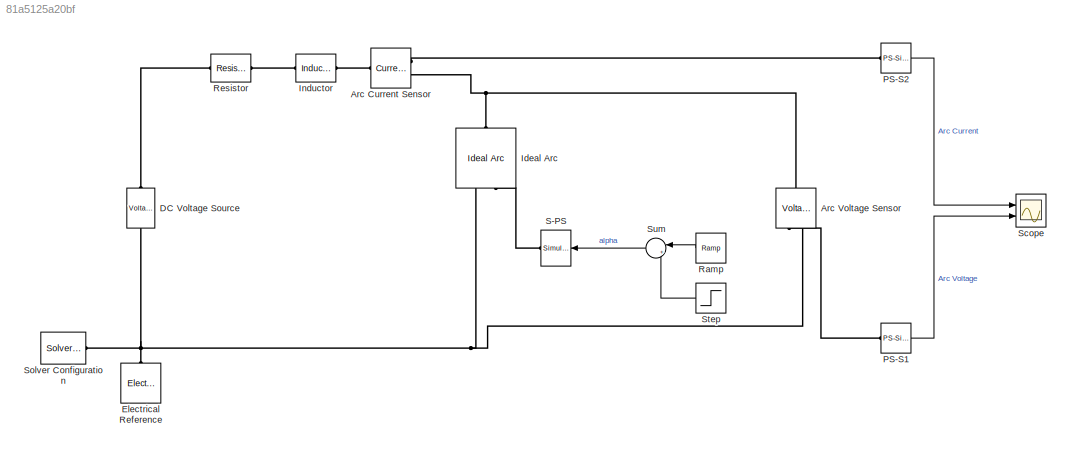
MODEL slx_81a5125a20bf
KIND model
BLOCK [Reference] Arc Current Sensor  REF=fl_lib/Electrical/Electrical Sensors/Current Sensor
  ClassName = current
  ComponentPath = foundation.electrical.sensors.current
  ComponentVariantNames = current
  ComponentVariants = foundation.electrical.sensors.current
  Ports = [0, 0, 0, 0, 0, 1, 2]
  SchemaVersion = 1
  SourceBlock = fl_lib/Electrical/Electrical Sensors/Current Sensor
  SourceFile = foundation.electrical.sensors.current
  SourceType = Current Sensor
BLOCK [Reference] Arc Voltage Sensor  REF=fl_lib/Electrical/Electrical Sensors/Voltage Sensor
  ClassName = voltage
  ComponentPath = foundation.electrical.sensors.voltage
  ComponentVariantNames = voltage
  ComponentVariants = foundation.electrical.sensors.voltage
  Ports = [0, 0, 0, 0, 0, 1, 2]
  SchemaVersion = 1
  SourceBlock = fl_lib/Electrical/Electrical Sensors/Voltage Sensor
  SourceFile = foundation.electrical.sensors.voltage
  SourceType = Voltage Sensor
BLOCK [Reference] DC Voltage Source  REF=elec_lib/Sources/Voltage Source
  ClassName = voltage_source
  ComponentPath = elec.sources.voltage_source
  ComponentVariantNames = voltage_source
  ComponentVariants = elec.sources.voltage_source
  PSD = 0
  PSD_unit = V^2/Hz
  Ports = [0, 0, 0, 0, 0, 1, 1]
  SchemaVersion = 1
  SourceBlock = elec_lib/Sources/Voltage Source
  SourceFile = elec.sources.voltage_source
  SourceType = Voltage Source
  ac_frequency = 50
  ac_frequency_unit = Hz
  ac_shift = 0
  ac_shift_unit = deg
  ac_voltage = 0
  ac_voltage_unit = V
  auto_seed = 399384400
  auto_seed_unit = 1
  dc_voltage = 36
  dc_voltage_unit = V
  noise_mode = 0
  noise_mode_unit = 1
  repeatability = 1
  repeatability_unit = 1
  sample_time = 0.001
  sample_time_unit = s
  user_seed = 0
  user_seed_unit = 1
BLOCK [Reference] Electrical Reference  REF=fl_lib/Electrical/Electrical Elements/Electrical Reference
  ClassName = reference
  ComponentPath = foundation.electrical.elements.reference
  ComponentVariantNames = reference
  ComponentVariants = foundation.electrical.elements.reference
  Ports = [0, 0, 0, 0, 0, 1]
  SchemaVersion = 1
  SourceBlock = fl_lib/Electrical/Electrical Elements/Electrical Reference
  SourceFile = foundation.electrical.elements.reference
  SourceType = Electrical Reference
BLOCK [Reference] Ideal Arc  REF=ArcLib_lib/Ideal Arc
  ClassName = IdealArc
  ComponentPath = ArcLib.IdealArc
  ComponentVariantNames = IdealArc
  ComponentVariants = ArcLib.IdealArc
  Ports = [0, 0, 0, 0, 0, 1, 2]
  Rc = 30000
  Rc_unit = Ohm
  SchemaVersion = 1
  SourceBlock = ArcLib_lib/Ideal Arc
  SourceFile = ArcLib.IdealArc
  SourceType = Ideal Arc
  TauI = 4.5e-5
  TauI_unit = s
  TauV = 4.5e-5
  TauV_unit = s
  b = 0.2
  b_unit = 1
  i = 300
  i_priority = High
  i_specify = on
  i_unit = A
  it = 1e-4
  it_priority = High
  it_specify = on
  it_unit = A
  v = 0.001
  v_priority = High
  v_specify = on
  v_unit = V
BLOCK [Reference] Inductor  REF=fl_lib/Electrical/Electrical Elements/Inductor
  ClassName = inductor
  ComponentPath = foundation.electrical.elements.inductor
  ComponentVariantNames = inductor
  ComponentVariants = foundation.electrical.elements.inductor
  Ports = [0, 0, 0, 0, 0, 1, 1]
  SchemaVersion = 1
  SourceBlock = fl_lib/Electrical/Electrical Elements/Inductor
  SourceFile = foundation.electrical.elements.inductor
  SourceType = Inductor
  g = 1e-9
  g_unit = 1/Ohm
  i = 300
  i_L = 327.27
  i_L_priority = High
  i_L_specify = on
  i_L_unit = A
  i_priority = High
  i_specify = off
  i_unit = A
  l = 0.1e-3
  l_unit = H
  r = 0
  r_unit = Ohm
  v = 0
  v_priority = High
  v_specify = off
  v_unit = V
BLOCK [Reference] PS-S1  REF=nesl_utility/PS-Simulink
Converter
  AffineConversion = off
  Frequencies = []
  LeftPortType = input
  PhysicalDomain = network_engine_domain
  Ports = [0, 1, 0, 0, 0, 1]
  PseudoPeriodic = off
  RightPortType = output
  SourceBlock = nesl_utility/PS-Simulink\nConverter
  SourceType = PS-Simulink\nConverter
  SubClassName = ps_output
  Unit = 1
BLOCK [Reference] PS-S2  REF=nesl_utility/PS-Simulink
Converter
  AffineConversion = off
  Frequencies = []
  LeftPortType = input
  PhysicalDomain = network_engine_domain
  Ports = [0, 1, 0, 0, 0, 1]
  PseudoPeriodic = off
  RightPortType = output
  SourceBlock = nesl_utility/PS-Simulink\nConverter
  SourceType = PS-Simulink\nConverter
  SubClassName = ps_output
  Unit = 1
BLOCK [Reference] Ramp  REF=simulink/Sources/Ramp
  Ports = [0, 1]
  SourceBlock = simulink/Sources/Ramp
  SourceType = Ramp
  VectorParams1D = on
  X0 = 0
  slope = 1000
  start = 0.01
BLOCK [Reference] Resistor  REF=fl_lib/Electrical/Electrical Elements/Resistor
  ClassName = resistor
  ComponentPath = foundation.electrical.elements.resistor
  ComponentVariantNames = resistor
  ComponentVariants = foundation.electrical.elements.resistor
  Ports = [0, 0, 0, 0, 0, 1, 1]
  R = 0.11
  R_unit = Ohm
  SchemaVersion = 1
  SourceBlock = fl_lib/Electrical/Electrical Elements/Resistor
  SourceFile = foundation.electrical.elements.resistor
  SourceType = Resistor
  i = 10
  i_priority = High
  i_specify = off
  i_unit = A
  v = 0
  v_priority = High
  v_specify = off
  v_unit = V
BLOCK [Reference] S-PS  REF=nesl_utility/Simulink-PS
Converter
  AffineConversion = off
  Frequencies = []
  InputFilterTimeConstant = 0.001
  InputFiltering = off
  LeftPortType = input
  NoiseDistribution = none
  NoiseParameters = []
  PhysicalDomain = network_engine_domain
  Ports = [1, 0, 0, 0, 0, 0, 1]
  PseudoPeriodic = off
  RightPortType = output
  SimscapeFilterOrder = 1
  SourceBlock = nesl_utility/Simulink-PS\nConverter
  SourceType = Simulink-PS\nConverter
  SubClassName = ps_input
  UdotUserProvided = 1
  Unit = 1
BLOCK [Scope] Scope
  DataFormat = StructureWithTime
  Floating = off
  LimitDataPoints = off
  NumInputPorts = 2
  Ports = [2]
  SampleTime = 0
  SaveName = ScopeData2
  ShowLegends = off
  YMax = 37.8~55
  YMin = 34.2~0
  ZoomMode = yonly
BLOCK [Reference] Solver Configuration  REF=nesl_utility/Solver
Configuration
  AbsTol = 1e-06
  Accelerate = off
  AutomaticFiltering = on
  DelaysMemoryBudget = 1024
  DoDC = off
  DoFixedCost = on
  EnableSwitchedLinearOptims = on
  FilteringTimeConstant = 0.001
  FrequencyDomain = off
  Harmonics = []
  LeftPortType = input
  LinearAlgebra = Sparse
  LocalSolverChoice = NE_BACKWARD_EULER_ADVANCER
  LocalSolverSampleTime = 1e-6
  MaxModeIter = 2
  MaxNonlinIter = 3
  MinStep = 1e-09
  PhysicalDomain = network_engine_domain
  Ports = [0, 0, 0, 0, 0, 0, 1]
  Profile = off
  RelTol = 0.001
  ResidualTolerance = 1e-09
  RightPortType = generic
  SimulateNoise = off
  SourceBlock = nesl_utility/Solver\nConfiguration
  SourceType = Solver\nConfiguration
  SubClassName = solver
  ToWorkspace = off
  Tones = []
  UseCCode = off
  UseLocalSampling = off
  UseLocalSolver = on
BLOCK [Step] Step
  After = 24
  SampleTime = 0
  Time = 0.01
BLOCK [Sum] Sum
  IconShape = round
  InputSameDT = off
  Inputs = |++
  OutDataTypeStr = Inherit: Inherit via internal rule
  Ports = [2, 1]
  SaturateOnIntegerOverflow = off
LINE PS-S1:1 -> Scope:2
LINE PS-S2:1 -> Scope:1
LINE Ramp:1 -> Sum:1
LINE Step:1 -> Sum:2
LINE Sum:1 -> S-PS:1
PLINE Arc Current Sensor:LConn1 -- Inductor:RConn1
PLINE Arc Current Sensor:RConn1 -- PS-S2:LConn1
PNET net1: Arc Current Sensor:RConn2 -- Arc Voltage Sensor:LConn1 -- Ideal Arc:LConn1
PLINE Arc Voltage Sensor:RConn1 -- PS-S1:LConn1
PNET net2: Arc Voltage Sensor:RConn2 -- DC Voltage Source:RConn1 -- Electrical Reference:LConn1 -- Ideal Arc:RConn1 -- Solver Configuration:RConn1
PLINE DC Voltage Source:LConn1 -- Resistor:LConn1
PLINE Ideal Arc:RConn2 -- S-PS:RConn1
PLINE Inductor:LConn1 -- Resistor:RConn1
note: PNET lines group multi-terminal physical nets as a canonical sorted terminal list (undirected conserving connections); 2-terminal nets keep the pairwise PLINE form
